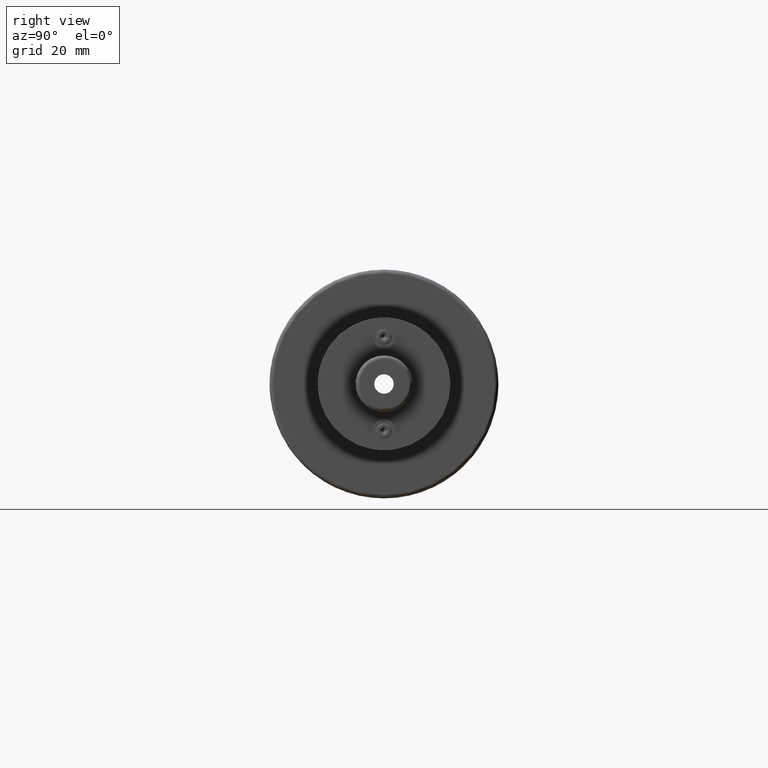
[diagram: clean part render]
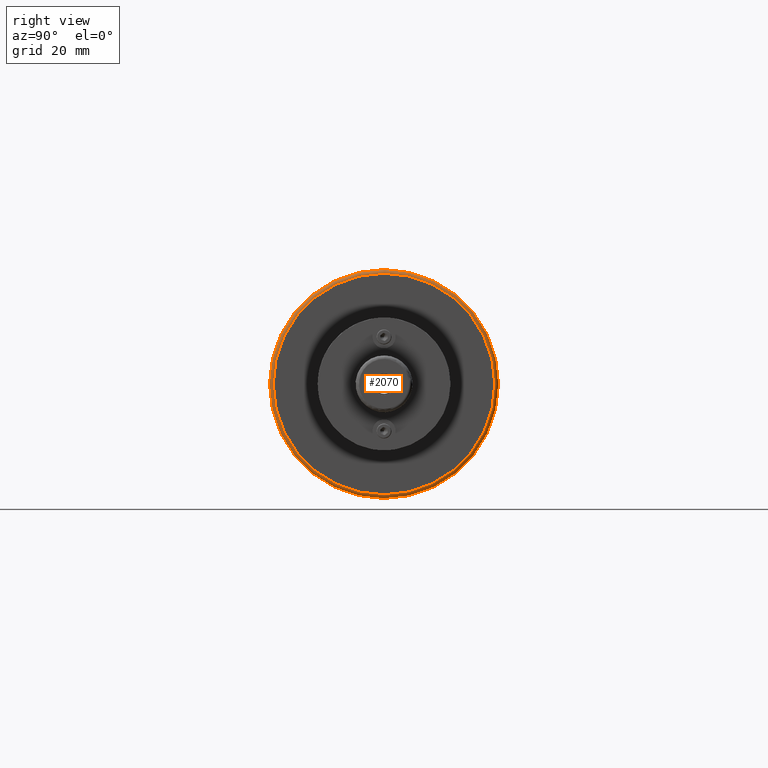
[diagram: same view with one face highlighted and labeled with its STEP entity id]
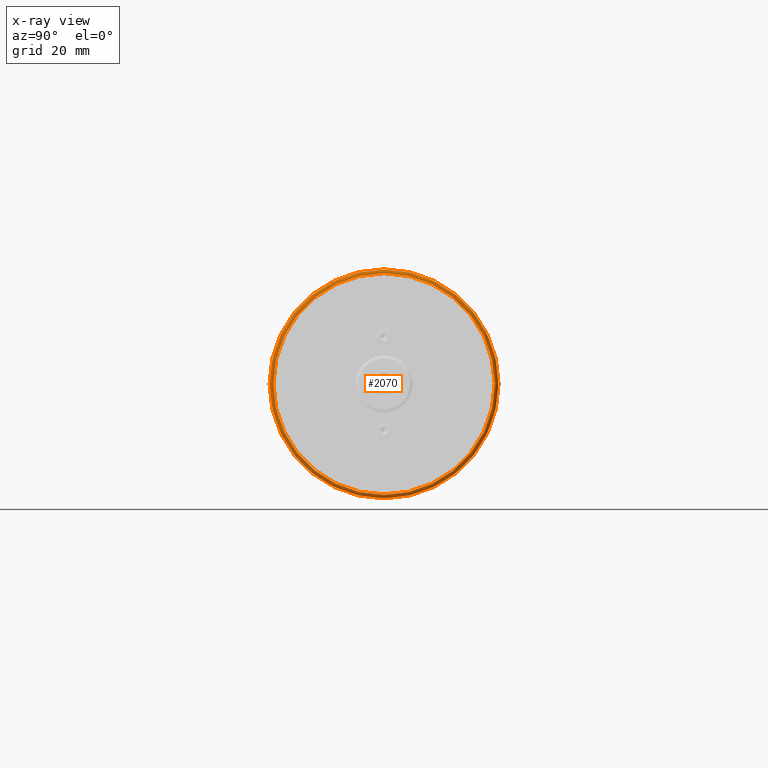
[diagram: x-ray of the same camera — body ghosted, the highlighted face saturated]
A machine part, right view. The second image highlights one B-rep face of the part: STEP entity #2070.
The next image is the same camera in x-ray: the body ghosted, the highlighted face saturated — about 0% of this face is hidden behind the body in this view.
In plain terms, the highlighted toroidal blend (fillet) surface has major radius 30.5 mm and minor (blend) radius 1 mm.
Its self-contained STEP definition (entity closure, byte-faithful):
#57=TOROIDAL_SURFACE('',#2377,30.5,1.00000000000001);
#215=CIRCLE('',#2324,31.5);
#218=CIRCLE('',#2327,31.5);
#244=CIRCLE('',#2378,30.5);
#245=CIRCLE('',#2379,1.00000000000001);
#378=FACE_OUTER_BOUND('',#517,.T.);
#517=EDGE_LOOP('',(#1706,#1707,#1708,#1709,#1710));
#940=VERTEX_POINT('',#3604);
#941=VERTEX_POINT('',#3605);
#972=VERTEX_POINT('',#3769);
#1173=EDGE_CURVE('',#940,#941,#215,.T.);
#1178=EDGE_CURVE('',#941,#940,#218,.T.);
#1230=EDGE_CURVE('',#972,#972,#244,.T.);
#1231=EDGE_CURVE('',#972,#941,#245,.T.);
#1706=ORIENTED_EDGE('',*,*,#1230,.F.);
#1707=ORIENTED_EDGE('',*,*,#1231,.T.);
#1708=ORIENTED_EDGE('',*,*,#1178,.T.);
#1709=ORIENTED_EDGE('',*,*,#1173,.T.);
#1710=ORIENTED_EDGE('',*,*,#1231,.F.);
#2070=ADVANCED_FACE('',(#378),#57,.T.);
#2324=AXIS2_PLACEMENT_3D('',#3606,#2742,#2743);
#2327=AXIS2_PLACEMENT_3D('',#3622,#2749,#2750);
#2377=AXIS2_PLACEMENT_3D('',#3768,#2867,#2868);
#2378=AXIS2_PLACEMENT_3D('',#3770,#2869,#2870);
#2379=AXIS2_PLACEMENT_3D('',#3771,#2871,#2872);
#2742=DIRECTION('center_axis',(1.,0.,0.));
#2743=DIRECTION('ref_axis',(0.,0.,-1.));
#2749=DIRECTION('center_axis',(1.,0.,0.));
#2750=DIRECTION('ref_axis',(0.,0.,-1.));
#2867=DIRECTION('center_axis',(1.,0.,0.));
#2868=DIRECTION('ref_axis',(0.,0.,-1.));
#2869=DIRECTION('center_axis',(1.,0.,0.));
#2870=DIRECTION('ref_axis',(0.,0.,-1.));
#2871=DIRECTION('center_axis',(0.,-1.,-1.22464679914735E-16));
#2872=DIRECTION('ref_axis',(0.,-1.22464679914735E-16,1.));
#3604=CARTESIAN_POINT('',(26.,-31.5,-3.85763741731416E-15));
#3605=CARTESIAN_POINT('',(26.,-3.85763741731416E-15,31.5));
#3606=CARTESIAN_POINT('Origin',(26.,0.,0.));
#3622=CARTESIAN_POINT('Origin',(26.,0.,0.));
#3768=CARTESIAN_POINT('Origin',(26.,0.,0.));
#3769=CARTESIAN_POINT('',(27.,-3.73517273739943E-15,30.5));
#3770=CARTESIAN_POINT('Origin',(27.,0.,0.));
#3771=CARTESIAN_POINT('Origin',(26.,-3.73517273739943E-15,30.5));